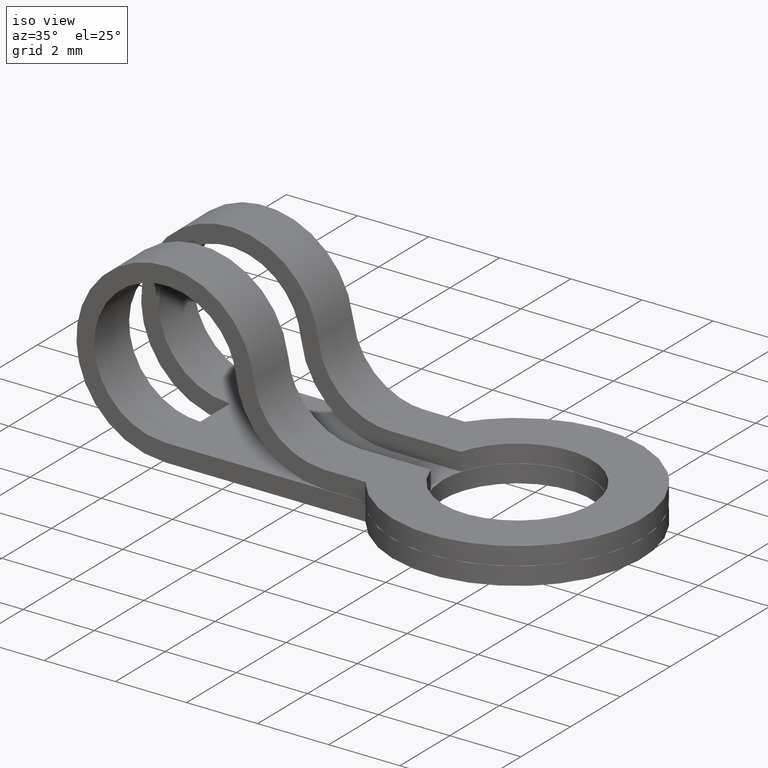
[diagram: clean part render]
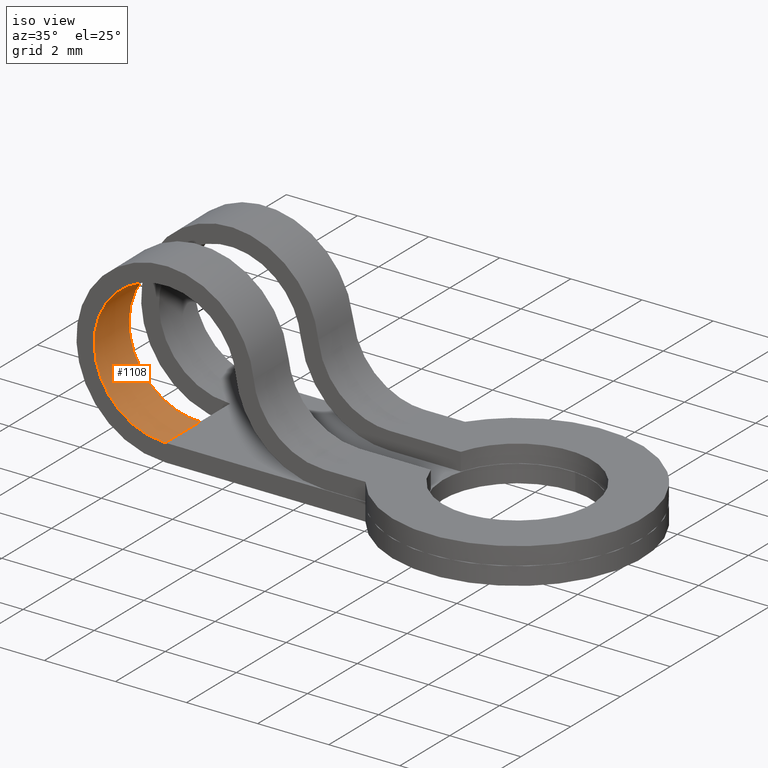
[diagram: same view with one face highlighted and labeled with its STEP entity id]
A machine part, iso view. The second image highlights one B-rep face of the part: STEP entity #1108.
In plain terms, the highlighted face is a freeform B-spline surface patch.
Its self-contained STEP definition (entity closure, byte-faithful):
#343=CARTESIAN_POINT('',(0.400000000000006,-0.600000000000000,-2.0));
#344=VERTEX_POINT('',#343);
#427=CARTESIAN_POINT('',(2.387114043587395,-0.600000000000045,0.226666666666668));
#428=VERTEX_POINT('',#427);
#442=CARTESIAN_POINT('',(2.387114043587394,-0.600000000000045,0.226666666666667));
#443=CARTESIAN_POINT('',(2.168870340818535,-0.600000000000045,2.139939284445391));
#444=CARTESIAN_POINT('',(0.248708177437426,-0.600000000000045,1.994269486409922));
#445=CARTESIAN_POINT('',(-1.671453985943683,-0.600000000000045,1.848599688374452));
#446=CARTESIAN_POINT('',(-1.598566858128569,-0.600000000000045,-0.075700155812773));
#447=CARTESIAN_POINT('',(-1.525679730313456,-0.600000000000045,-2.0));
#448=CARTESIAN_POINT('',(0.400000000000006,-0.600000000000000,-2.0));
#456=(BOUNDED_CURVE()B_SPLINE_CURVE(2,(#442,#443,#444,#445,#446,#447,#448),.UNSPECIFIED.,.F.,.U.)B_SPLINE_CURVE_WITH_KNOTS((3,2,2,3),(0.0,0.333333333333333,0.666666666666667,1.0),.UNSPECIFIED.)CURVE()GEOMETRIC_REPRESENTATION_ITEM()RATIONAL_B_SPLINE_CURVE((1.0,0.720364518110931,1.0,0.720364518110931,1.0,0.720364518110931,1.0))REPRESENTATION_ITEM(''));
#457=EDGE_CURVE('',#428,#344,#456,.T.);
#751=CARTESIAN_POINT('',(0.400000000000006,-2.000000000000225,-2.0));
#752=VERTEX_POINT('',#751);
#758=CARTESIAN_POINT('',(2.387114043587395,-2.000000000000225,0.226666666666668));
#759=VERTEX_POINT('',#758);
#760=CARTESIAN_POINT('',(0.400000000000006,-2.000000000000225,-2.0));
#761=CARTESIAN_POINT('',(-1.525679730313454,-2.000000000000225,-2.000000000000000));
#762=CARTESIAN_POINT('',(-1.598566858128569,-2.000000000000225,-0.075700155812775));
#763=CARTESIAN_POINT('',(-1.671453985943684,-2.000000000000225,1.848599688374450));
#764=CARTESIAN_POINT('',(0.248708177437425,-2.000000000000225,1.994269486409921));
#765=CARTESIAN_POINT('',(2.168870340818534,-2.000000000000225,2.139939284445393));
#766=CARTESIAN_POINT('',(2.387114043587394,-2.000000000000225,0.226666666666668));
#774=(BOUNDED_CURVE()B_SPLINE_CURVE(2,(#760,#761,#762,#763,#764,#765,#766),.UNSPECIFIED.,.F.,.U.)B_SPLINE_CURVE_WITH_KNOTS((3,2,2,3),(0.0,0.333333333333333,0.666666666666667,1.0),.UNSPECIFIED.)CURVE()GEOMETRIC_REPRESENTATION_ITEM()RATIONAL_B_SPLINE_CURVE((1.0,0.720364518110931,1.0,0.720364518110931,1.0,0.720364518110931,1.0))REPRESENTATION_ITEM(''));
#775=EDGE_CURVE('',#752,#759,#774,.T.);
#947=CARTESIAN_POINT('',(2.387114043587395,-0.600000000000045,0.226666666666668));
#948=CARTESIAN_POINT('',(2.387114043587395,-2.000000000000225,0.226666666666668));
#949=QUASI_UNIFORM_CURVE('',1,(#947,#948),.UNSPECIFIED.,.F.,.U.);
#950=EDGE_CURVE('',#428,#759,#949,.T.);
#1034=CARTESIAN_POINT('',(0.400000000000006,-0.600000000000000,-2.0));
#1035=CARTESIAN_POINT('',(0.400000000000006,-2.000000000000225,-2.0));
#1036=QUASI_UNIFORM_CURVE('',1,(#1034,#1035),.UNSPECIFIED.,.F.,.U.);
#1037=EDGE_CURVE('',#344,#752,#1036,.T.);
#1080=CARTESIAN_POINT('',(0.470060758011548,-0.564999999999994,-1.998772495855105));
#1081=CARTESIAN_POINT('',(0.470060758011548,-2.035875000000231,-1.998772495855105));
#1082=CARTESIAN_POINT('',(-1.528711737843557,-0.564999999999994,-2.068833253866648));
#1083=CARTESIAN_POINT('',(-1.528711737843557,-2.035875000000231,-2.068833253866648));
#1084=CARTESIAN_POINT('',(-1.598772495855100,-0.564999999999994,-0.070060758011543));
#1085=CARTESIAN_POINT('',(-1.598772495855100,-2.035875000000231,-0.070060758011543));
#1086=CARTESIAN_POINT('',(-1.668833253866642,-0.564999999999994,1.928711737843561));
#1087=CARTESIAN_POINT('',(-1.668833253866642,-2.035875000000231,1.928711737843561));
#1088=CARTESIAN_POINT('',(0.329939241988462,-0.564999999999994,1.998772495855105));
#1089=CARTESIAN_POINT('',(0.329939241988462,-2.035875000000231,1.998772495855105));
#1090=CARTESIAN_POINT('',(2.328711737843567,-0.564999999999994,2.068833253866648));
#1091=CARTESIAN_POINT('',(2.328711737843567,-2.035875000000231,2.068833253866648));
#1092=CARTESIAN_POINT('',(2.398772495855110,-0.564999999999994,0.070060758011543));
#1093=CARTESIAN_POINT('',(2.398772495855110,-2.035875000000231,0.070060758011543));
#1101=(BOUNDED_SURFACE()B_SPLINE_SURFACE(1,2,((#1080,#1082,#1084,#1086,#1088,#1090,#1092),(#1081,#1083,#1085,#1087,#1089,#1091,#1093)),.UNSPECIFIED.,.F.,.F.,.U.)B_SPLINE_SURFACE_WITH_KNOTS((2,2),(3,2,2,3),(0.0,1.0),(0.0,3.313708498984759,6.627416997969518,9.941125496954276),.UNSPECIFIED.)GEOMETRIC_REPRESENTATION_ITEM()RATIONAL_B_SPLINE_SURFACE(((1.0,0.707106781186548,1.0,0.707106781186548,1.0,0.707106781186548,1.0),(1.0,0.707106781186548,1.0,0.707106781186548,1.0,0.707106781186548,1.0)))REPRESENTATION_ITEM('')SURFACE());
#1102=ORIENTED_EDGE('',*,*,#457,.F.);
#1103=ORIENTED_EDGE('',*,*,#950,.T.);
#1104=ORIENTED_EDGE('',*,*,#775,.F.);
#1105=ORIENTED_EDGE('',*,*,#1037,.F.);
#1106=EDGE_LOOP('',(#1102,#1103,#1104,#1105));
#1107=FACE_OUTER_BOUND('',#1106,.T.);
#1108=ADVANCED_FACE('',(#1107),#1101,.F.);